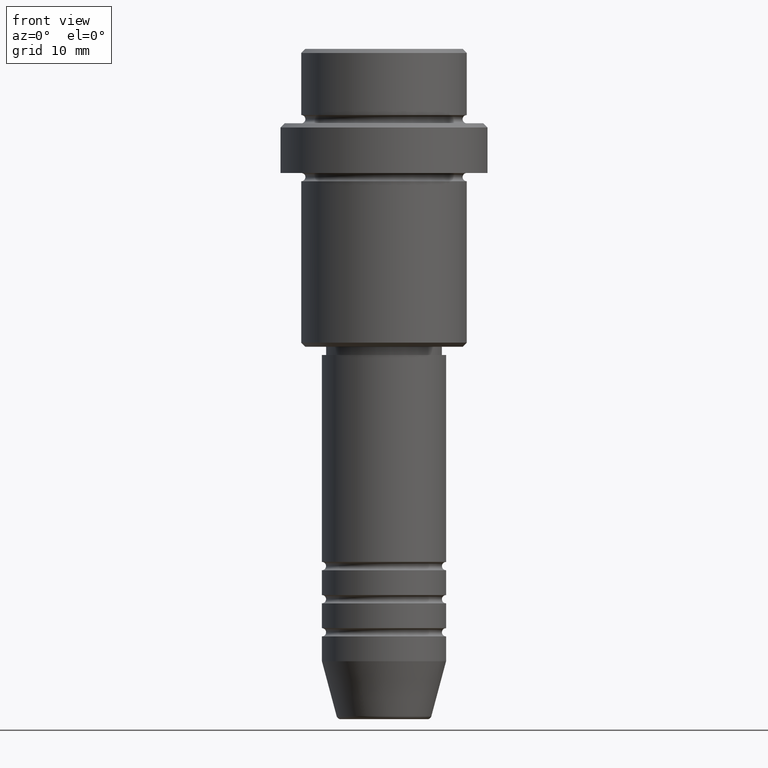
[diagram: clean part render]
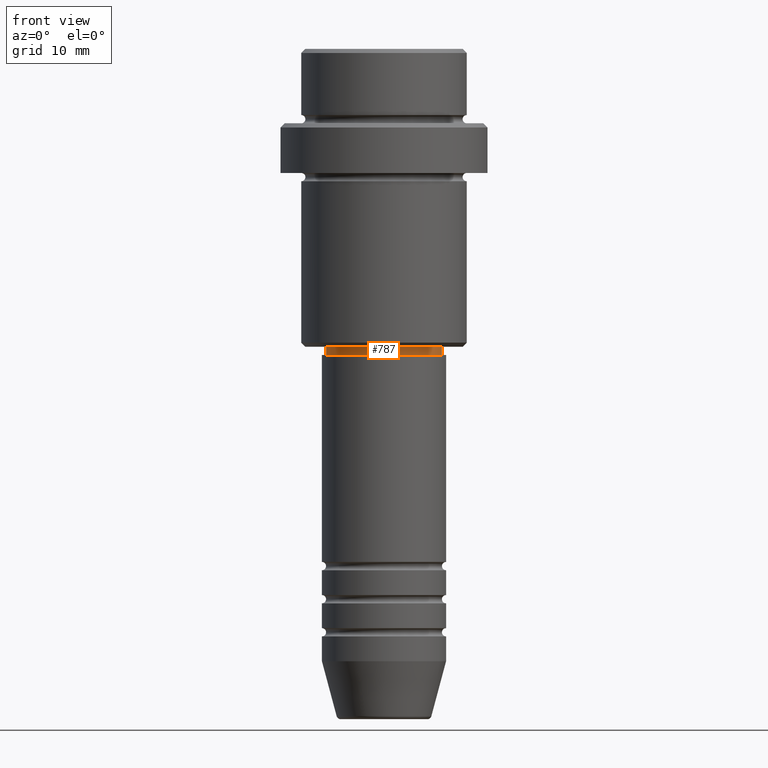
[diagram: same view with one face highlighted and labeled with its STEP entity id]
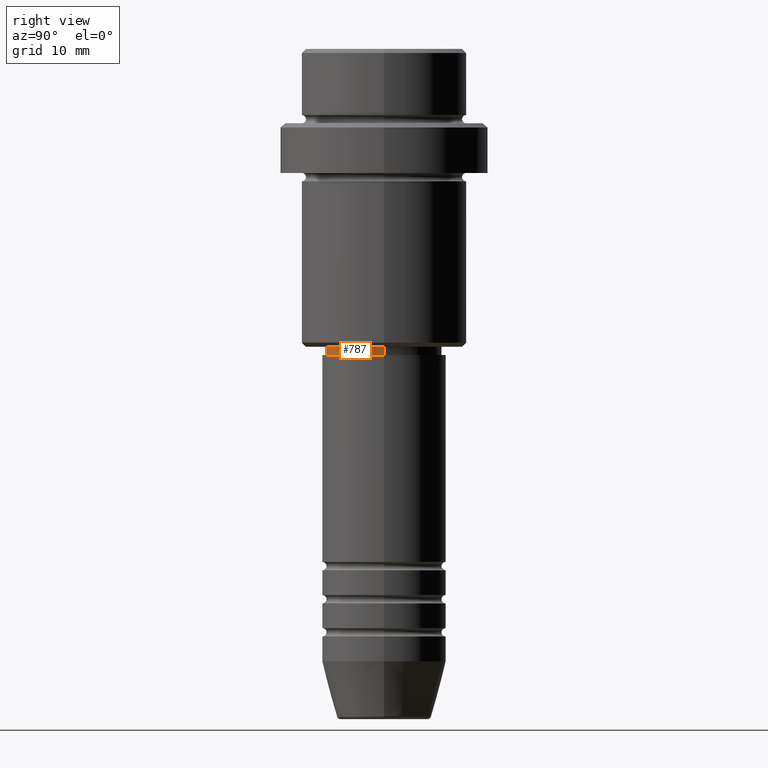
[diagram: same view with one face highlighted and labeled with its STEP entity id]
A machine part, front view. The second image highlights one B-rep face of the part: STEP entity #787.
A second angle (right view) of the same face is appended — the face is thin or edge-on in the first view.
In plain terms, the highlighted cylindrical surface (partial cylindrical patch) has radius 7 mm, axis along (-0, -0, 1).
Its self-contained STEP definition (entity closure, byte-faithful):
#96 = AXIS2_PLACEMENT_3D ( 'NONE', #614, #1381, #1280 ) ;
#189 = DIRECTION ( 'NONE',  ( -0.000000000000000000, -0.000000000000000000, 1.000000000000000000 ) ) ;
#216 = CARTESIAN_POINT ( 'NONE',  ( 6.999999999999993783, 0.000000000000000000, -36.00000000000000000 ) ) ;
#296 = LINE ( 'NONE', #1176, #897 ) ;
#340 = VECTOR ( 'NONE', #378, 1000.000000000000000 ) ;
#378 = DIRECTION ( 'NONE',  ( -0.000000000000000000, -0.000000000000000000, 1.000000000000000000 ) ) ;
#431 = CARTESIAN_POINT ( 'NONE',  ( 0.000000000000000000, 0.000000000000000000, -36.00000000000000000 ) ) ;
#437 = AXIS2_PLACEMENT_3D ( 'NONE', #1405, #961, #1297 ) ;
#446 = VERTEX_POINT ( 'NONE', #1233 ) ;
#499 = EDGE_CURVE ( 'NONE', #740, #572, #1063, .T. ) ;
#508 = EDGE_CURVE ( 'NONE', #740, #446, #296, .T. ) ;
#566 = EDGE_LOOP ( 'NONE', ( #1375, #847, #1207, #852 ) ) ;
#572 = VERTEX_POINT ( 'NONE', #1253 ) ;
#592 = CIRCLE ( 'NONE', #689, 6.999999999999993783 ) ;
#614 = CARTESIAN_POINT ( 'NONE',  ( 0.000000000000000000, 0.000000000000000000, -37.00000000000000000 ) ) ;
#650 = DIRECTION ( 'NONE',  ( 1.000000000000000000, 0.000000000000000000, 0.000000000000000000 ) ) ;
#689 = AXIS2_PLACEMENT_3D ( 'NONE', #431, #1201, #650 ) ;
#740 = VERTEX_POINT ( 'NONE', #1178 ) ;
#787 = ADVANCED_FACE ( 'NONE', ( #872 ), #1084, .T. ) ;
#817 = VERTEX_POINT ( 'NONE', #216 ) ;
#847 = ORIENTED_EDGE ( 'NONE', *, *, #499, .T. ) ;
#852 = ORIENTED_EDGE ( 'NONE', *, *, #883, .F. ) ;
#872 = FACE_OUTER_BOUND ( 'NONE', #566, .T. ) ;
#883 = EDGE_CURVE ( 'NONE', #446, #817, #592, .T. ) ;
#897 = VECTOR ( 'NONE', #189, 1000.000000000000000 ) ;
#961 = DIRECTION ( 'NONE',  ( -0.000000000000000000, -0.000000000000000000, 1.000000000000000000 ) ) ;
#1040 = LINE ( 'NONE', #1355, #340 ) ;
#1063 = CIRCLE ( 'NONE', #96, 6.999999999999993783 ) ;
#1084 = CYLINDRICAL_SURFACE ( 'NONE', #437, 6.999999999999993783 ) ;
#1176 = CARTESIAN_POINT ( 'NONE',  ( -6.999999999999993783, 8.572527594031465301E-16, 0.000000000000000000 ) ) ;
#1178 = CARTESIAN_POINT ( 'NONE',  ( -6.999999999999993783, 8.572527594031465301E-16, -37.00000000000000000 ) ) ;
#1198 = EDGE_CURVE ( 'NONE', #572, #817, #1040, .T. ) ;
#1201 = DIRECTION ( 'NONE',  ( -0.000000000000000000, -0.000000000000000000, 1.000000000000000000 ) ) ;
#1207 = ORIENTED_EDGE ( 'NONE', *, *, #1198, .T. ) ;
#1233 = CARTESIAN_POINT ( 'NONE',  ( -6.999999999999993783, 8.572527594031465301E-16, -36.00000000000000000 ) ) ;
#1253 = CARTESIAN_POINT ( 'NONE',  ( 6.999999999999993783, 0.000000000000000000, -37.00000000000000000 ) ) ;
#1280 = DIRECTION ( 'NONE',  ( 1.000000000000000000, 0.000000000000000000, 0.000000000000000000 ) ) ;
#1297 = DIRECTION ( 'NONE',  ( 1.000000000000000000, 0.000000000000000000, 0.000000000000000000 ) ) ;
#1355 = CARTESIAN_POINT ( 'NONE',  ( 6.999999999999993783, 0.000000000000000000, 0.000000000000000000 ) ) ;
#1375 = ORIENTED_EDGE ( 'NONE', *, *, #508, .F. ) ;
#1381 = DIRECTION ( 'NONE',  ( -0.000000000000000000, -0.000000000000000000, 1.000000000000000000 ) ) ;
#1405 = CARTESIAN_POINT ( 'NONE',  ( 0.000000000000000000, 0.000000000000000000, 0.000000000000000000 ) ) ;